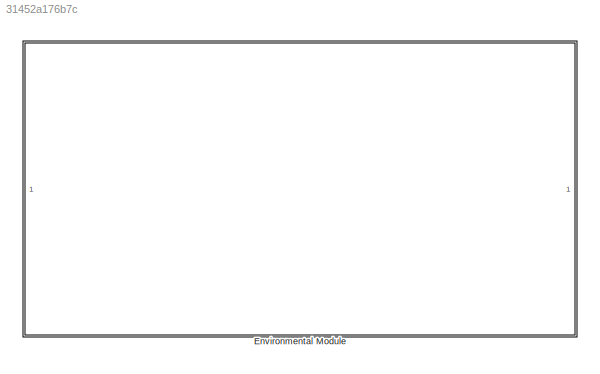
MODEL slx_31452a176b7c
KIND library
CONFIG AbsTol = auto
CONFIG EnableMultiTasking = off
CONFIG FixedStep = auto
CONFIG MaxStep = auto
CONFIG MinStep = auto
CONFIG RelTol = 1e-3
CONFIG SampleTimeConstraint = Unconstrained
CONFIG SolverName = VariableStepAuto
CONFIG StartTime = 0.0
CONFIG StopTime = 10.0
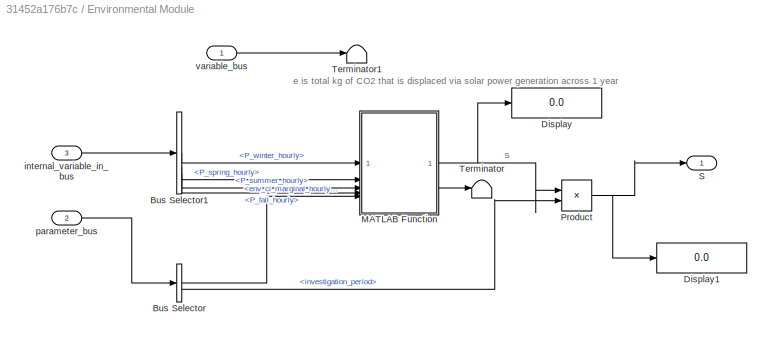
BLOCK [SubSystem] Environmental Module
BLOCK [BusSelector] Environmental Module/Bus Selector
  OutputSignals = env_ci_marginal_hourly_miso,investigation_period
BLOCK [BusSelector] Environmental Module/Bus Selector1
  OutputSignals = P_winter_hourly,P_spring_hourly,P_summer_hourly,P_fall_hourly
BLOCK [Display] Environmental Module/Display
  Decimation = 1
BLOCK [Display] Environmental Module/Display1
  Decimation = 1
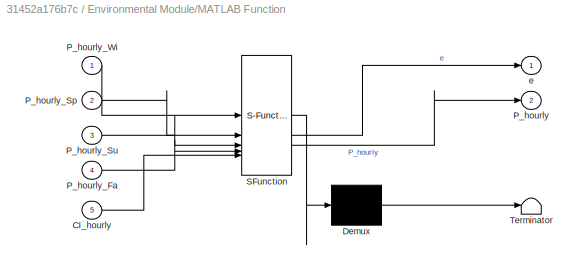
BLOCK [SubSystem] Environmental Module/MATLAB Function
  ErrorFcn = Stateflow.Translate.translate
  PermitHierarchicalResolution = ExplicitOnly
  SFBlockType = MATLAB Function
  TreatAsAtomicUnit = on
BLOCK [Demux] Environmental Module/MATLAB Function/ Demux 
  Outputs = 1
BLOCK [S-Function] Environmental Module/MATLAB Function/ SFunction 
  EnableBusSupport = off
  FunctionName = sf_sfun
  PortCounts = [5 3]
  SFcnIsStateOwnerBlock = off
  SFunctionDeploymentMode = off
  Tag = Stateflow S-Function 2
BLOCK [Terminator] Environmental Module/MATLAB Function/ Terminator 
BLOCK [Inport] Environmental Module/MATLAB Function/CI_hourly
  Port = 5
BLOCK [Outport] Environmental Module/MATLAB Function/P_hourly
  Port = 2
BLOCK [Inport] Environmental Module/MATLAB Function/P_hourly_Fa
  Port = 4
BLOCK [Inport] Environmental Module/MATLAB Function/P_hourly_Sp
  Port = 2
BLOCK [Inport] Environmental Module/MATLAB Function/P_hourly_Su
  Port = 3
BLOCK [Inport] Environmental Module/MATLAB Function/P_hourly_Wi
BLOCK [Outport] Environmental Module/MATLAB Function/e
BLOCK [Product] Environmental Module/Product
BLOCK [Outport] Environmental Module/S
BLOCK [Terminator] Environmental Module/Terminator
BLOCK [Terminator] Environmental Module/Terminator1
BLOCK [Inport] Environmental Module/internal_variable_in_bus
  Port = 3
BLOCK [Inport] Environmental Module/parameter_bus
  Port = 2
BLOCK [Inport] Environmental Module/variable_bus
ANNOTATION Environmental Module: e is total kg of CO2 that is displaced via solar power generation across 1 year
LINE Environmental Module/Bus Selector1:1 -> Environmental Module/MATLAB Function:1
LINE Environmental Module/Bus Selector1:2 -> Environmental Module/MATLAB Function:2
LINE Environmental Module/Bus Selector1:3 -> Environmental Module/MATLAB Function:3
LINE Environmental Module/Bus Selector1:4 -> Environmental Module/MATLAB Function:4
LINE Environmental Module/Bus Selector:1 -> Environmental Module/MATLAB Function:5
LINE Environmental Module/Bus Selector:2 -> Environmental Module/Product:2
NET Environmental Module/MATLAB Function:1 -> Environmental Module/Display:1, Environmental Module/Product:1
LINE Environmental Module/MATLAB Function:2 -> Environmental Module/Terminator:1
NET Environmental Module/Product:1 -> Environmental Module/Display1:1, Environmental Module/S:1
LINE Environmental Module/internal_variable_in_bus:1 -> Environmental Module/Bus Selector1:1
LINE Environmental Module/parameter_bus:1 -> Environmental Module/Bus Selector:1
LINE Environmental Module/variable_bus:1 -> Environmental Module/Terminator1:1
note: NET lines group one-source signal fan-out (src -> all destinations, sorted); 1:1 wires keep LINE
CHART Environmental Module/MATLAB Function states=1 transitions=1
  STATE_LABEL 'eML_blk_kernel()'
  STATE_LABEL 'SCRIPT:\nfunction [e, P_hourly] = fcn(P_hourly_Wi,P_hourly_Sp,P_hourly_Su,P_hourly_Fa, CI_hourly)\n% CI hourly should just be 96 vals long--> get representative 24 hour\n% values for each of the 4 seasons, starting with winter\nP_hourly = [P_hourly_Wi; P_hourly_Sp; P_hourly_Su; P_hourly_Fa];\n%disp(P_hourly);\nE_MWh = P_hourly / 1e6;      % assuming P_hourly is in W-->converting to MWh for each hour\nco2...<+466ch>'
CHART  states=0 transitions=0
